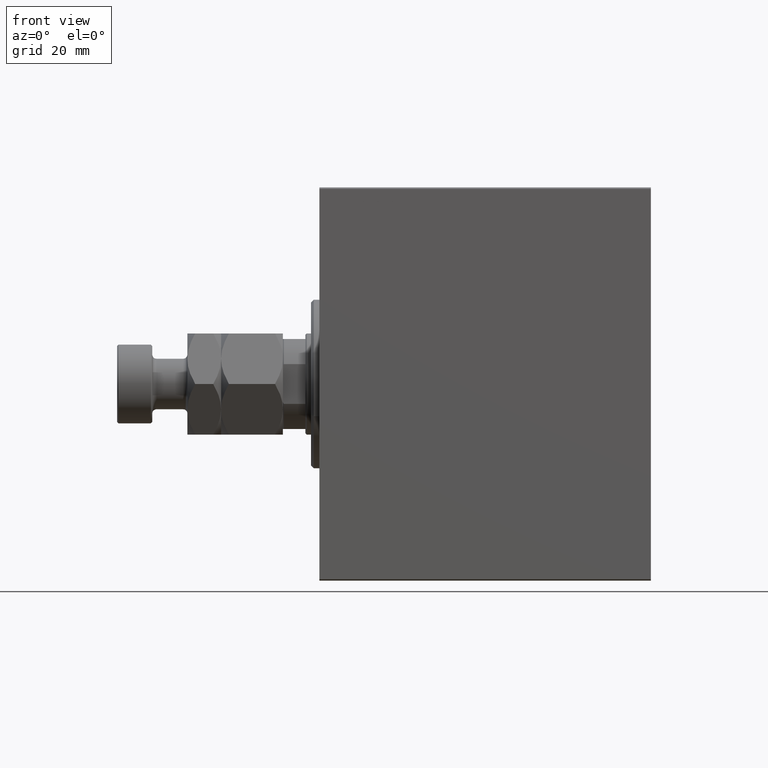
[diagram: clean part render]
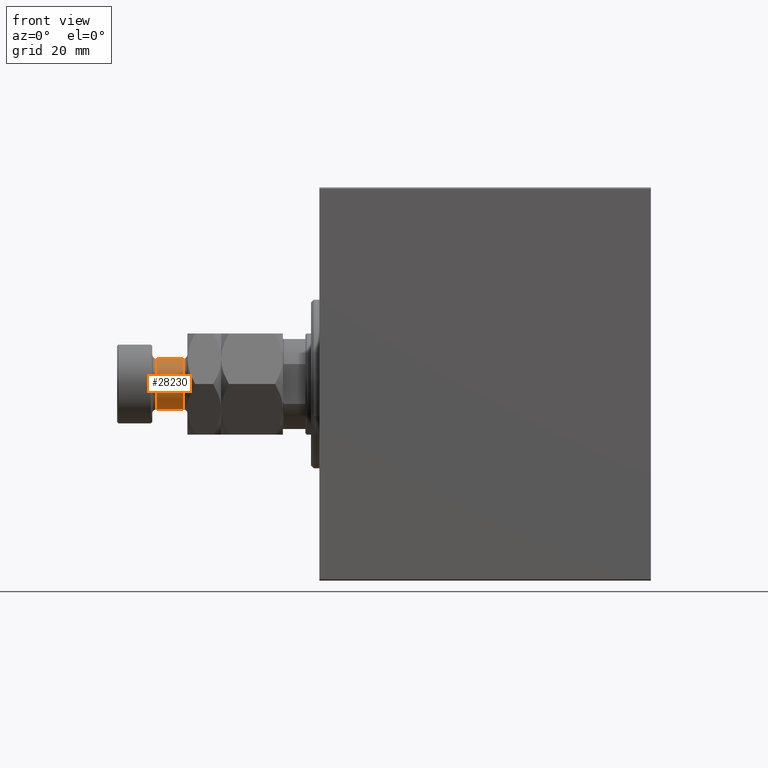
[diagram: same view with one face highlighted and labeled with its STEP entity id]
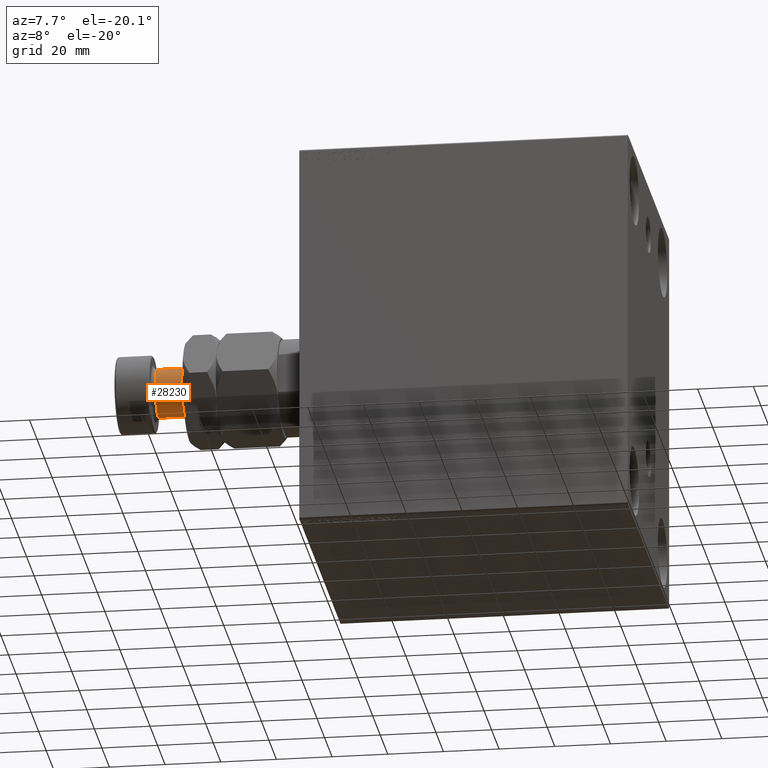
[diagram: same view with one face highlighted and labeled with its STEP entity id]
A machine part, front view. The second image highlights one B-rep face of the part: STEP entity #28230.
A second angle (auxiliary view) of the same face is appended — the face is thin or edge-on in the first view.
In plain terms, the highlighted cylindrical surface (edge-blend (fillet) strip) has radius 9 mm, axis along (1, -0, -0).
Its self-contained STEP definition (entity closure, byte-faithful):
#737 = CARTESIAN_POINT ( 'NONE',  ( -9.000000000000000000, 0.000000000000000000, 35.50000000000000711 ) ) ;
#3112 = DIRECTION ( 'NONE',  ( -0.000000000000000000, -0.000000000000000000, -1.000000000000000000 ) ) ;
#7817 = ORIENTED_EDGE ( 'NONE', *, *, #21110, .T. ) ;
#7948 = VERTEX_POINT ( 'NONE', #22865 ) ;
#8057 = VERTEX_POINT ( 'NONE', #25357 ) ;
#8719 = ORIENTED_EDGE ( 'NONE', *, *, #34190, .F. ) ;
#14036 = ORIENTED_EDGE ( 'NONE', *, *, #25629, .T. ) ;
#14378 = CARTESIAN_POINT ( 'NONE',  ( -9.000000000000000000, 0.000000000000000000, 45.00000000000000000 ) ) ;
#17318 = DIRECTION ( 'NONE',  ( 1.000000000000000000, 0.000000000000000000, 0.000000000000000000 ) ) ;
#21110 = EDGE_CURVE ( 'NONE', #24356, #7948, #33469, .T. ) ;
#21258 = CYLINDRICAL_SURFACE ( 'NONE', #34273, 9.000000000000000000 ) ;
#21901 = VECTOR ( 'NONE', #3112, 1000.000000000000000 ) ;
#22865 = CARTESIAN_POINT ( 'NONE',  ( 9.000000000000000000, 1.102182119232617714E-15, 35.50000000000000711 ) ) ;
#24356 = VERTEX_POINT ( 'NONE', #737 ) ;
#25357 = CARTESIAN_POINT ( 'NONE',  ( 9.000000000000000000, 1.102182119232617714E-15, 45.00000000000000000 ) ) ;
#25629 = EDGE_CURVE ( 'NONE', #40439, #24356, #33593, .T. ) ;
#26899 = CARTESIAN_POINT ( 'NONE',  ( -9.000000000000000000, 0.000000000000000000, 46.50000000000000000 ) ) ;
#26977 = VECTOR ( 'NONE', #30366, 1000.000000000000000 ) ;
#28230 = ADVANCED_FACE ( 'NONE', ( #32098 ), #21258, .T. ) ;
#28404 = CARTESIAN_POINT ( 'NONE',  ( 0.000000000000000000, 0.000000000000000000, 46.50000000000000000 ) ) ;
#30203 = CARTESIAN_POINT ( 'NONE',  ( 0.000000000000000000, 0.000000000000000000, 35.50000000000000711 ) ) ;
#30366 = DIRECTION ( 'NONE',  ( -0.000000000000000000, -0.000000000000000000, -1.000000000000000000 ) ) ;
#32098 = FACE_OUTER_BOUND ( 'NONE', #35804, .T. ) ;
#32323 = DIRECTION ( 'NONE',  ( -0.000000000000000000, -0.000000000000000000, -1.000000000000000000 ) ) ;
#33469 = CIRCLE ( 'NONE', #40090, 9.000000000000000000 ) ;
#33593 = LINE ( 'NONE', #26899, #26977 ) ;
#33751 = LINE ( 'NONE', #41796, #21901 ) ;
#33869 = AXIS2_PLACEMENT_3D ( 'NONE', #34838, #38072, #17318 ) ;
#34190 = EDGE_CURVE ( 'NONE', #8057, #7948, #33751, .T. ) ;
#34273 = AXIS2_PLACEMENT_3D ( 'NONE', #28404, #32323, #43151 ) ;
#34838 = CARTESIAN_POINT ( 'NONE',  ( 0.000000000000000000, 0.000000000000000000, 45.00000000000000000 ) ) ;
#35804 = EDGE_LOOP ( 'NONE', ( #8719, #43799, #14036, #7817 ) ) ;
#36069 = CIRCLE ( 'NONE', #33869, 9.000000000000000000 ) ;
#38072 = DIRECTION ( 'NONE',  ( -0.000000000000000000, -0.000000000000000000, -1.000000000000000000 ) ) ;
#40090 = AXIS2_PLACEMENT_3D ( 'NONE', #30203, #40807, #43808 ) ;
#40439 = VERTEX_POINT ( 'NONE', #14378 ) ;
#40807 = DIRECTION ( 'NONE',  ( 0.000000000000000000, 0.000000000000000000, 1.000000000000000000 ) ) ;
#41796 = CARTESIAN_POINT ( 'NONE',  ( 9.000000000000000000, 1.102182119232617714E-15, 46.50000000000000000 ) ) ;
#43151 = DIRECTION ( 'NONE',  ( -1.000000000000000000, 0.000000000000000000, 0.000000000000000000 ) ) ;
#43799 = ORIENTED_EDGE ( 'NONE', *, *, #44619, .T. ) ;
#43808 = DIRECTION ( 'NONE',  ( 1.000000000000000000, 0.000000000000000000, 0.000000000000000000 ) ) ;
#44619 = EDGE_CURVE ( 'NONE', #8057, #40439, #36069, .T. ) ;